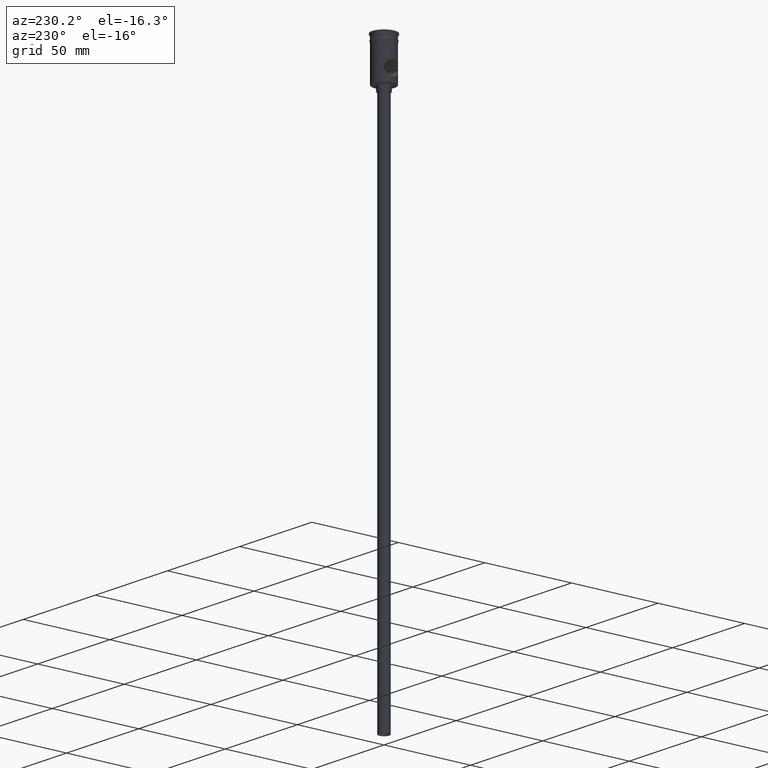
[diagram: clean part render]
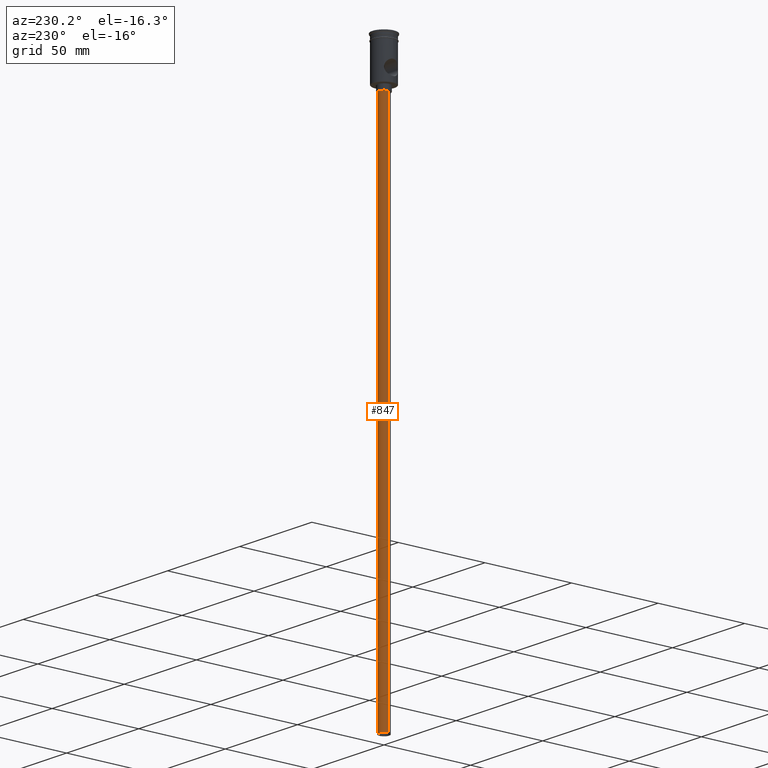
[diagram: same view with one face highlighted and labeled with its STEP entity id]
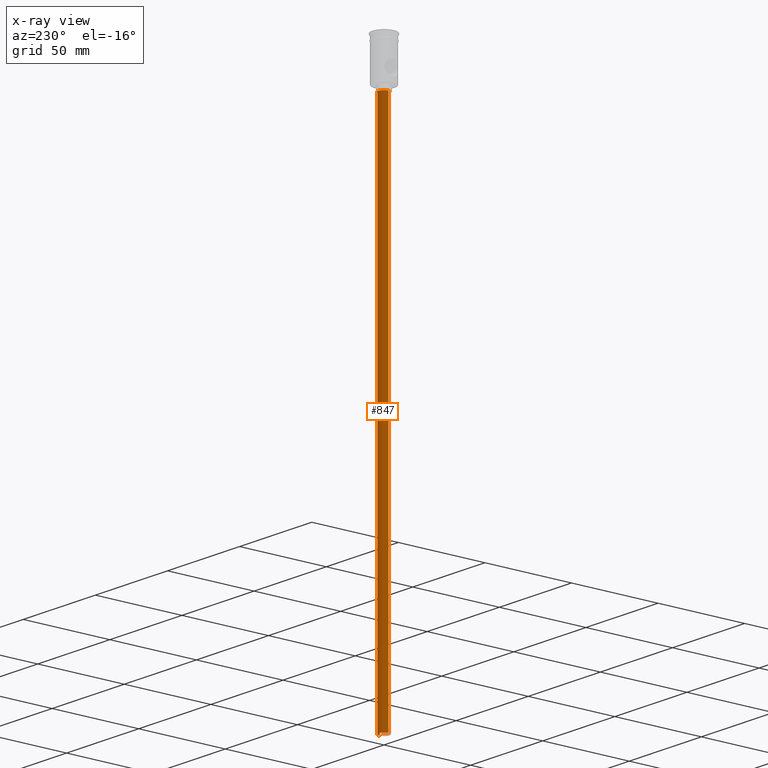
[diagram: x-ray of the same camera — body ghosted, the highlighted face saturated]
A machine part, auxiliary view. The second image highlights one B-rep face of the part: STEP entity #847.
The next image is the same camera in x-ray: the body ghosted, the highlighted face saturated — about 0% of this face is hidden behind the body in this view.
In plain terms, the highlighted cylindrical surface (edge-blend (fillet) strip) has radius 3 mm, axis along (-0, -0, 1).
Its self-contained STEP definition (entity closure, byte-faithful):
#13 = DIRECTION ( 'NONE',  ( -0.000000000000000000, -0.000000000000000000, 1.000000000000000000 ) ) ;
#28 = DIRECTION ( 'NONE',  ( -1.000000000000000000, 0.000000000000000000, 0.000000000000000000 ) ) ;
#121 = CARTESIAN_POINT ( 'NONE',  ( 0.000000000000000000, 0.000000000000000000, -324.0000000000000000 ) ) ;
#123 = CYLINDRICAL_SURFACE ( 'NONE', #629, 3.000000000000000444 ) ;
#161 = DIRECTION ( 'NONE',  ( 0.000000000000000000, 0.000000000000000000, -1.000000000000000000 ) ) ;
#191 = VERTEX_POINT ( 'NONE', #264 ) ;
#216 = VERTEX_POINT ( 'NONE', #262 ) ;
#240 = DIRECTION ( 'NONE',  ( 1.000000000000000000, 0.000000000000000000, 0.000000000000000000 ) ) ;
#262 = CARTESIAN_POINT ( 'NONE',  ( -3.000000000000000444, 3.673940397442060361E-16, -324.0000000000000000 ) ) ;
#264 = CARTESIAN_POINT ( 'NONE',  ( -3.000000000000000444, 3.673940397442060361E-16, -27.00000000000000000 ) ) ;
#297 = ORIENTED_EDGE ( 'NONE', *, *, #1304, .F. ) ;
#356 = CARTESIAN_POINT ( 'NONE',  ( 0.000000000000000000, 0.000000000000000000, -27.00000000000000000 ) ) ;
#371 = CIRCLE ( 'NONE', #1092, 3.000000000000000444 ) ;
#376 = ORIENTED_EDGE ( 'NONE', *, *, #1028, .T. ) ;
#384 = DIRECTION ( 'NONE',  ( -0.000000000000000000, -0.000000000000000000, 1.000000000000000000 ) ) ;
#411 = EDGE_CURVE ( 'NONE', #191, #478, #654, .T. ) ;
#425 = VERTEX_POINT ( 'NONE', #1105 ) ;
#478 = VERTEX_POINT ( 'NONE', #766 ) ;
#629 = AXIS2_PLACEMENT_3D ( 'NONE', #826, #13, #240 ) ;
#654 = CIRCLE ( 'NONE', #1427, 3.000000000000000444 ) ;
#670 = ORIENTED_EDGE ( 'NONE', *, *, #1101, .F. ) ;
#686 = DIRECTION ( 'NONE',  ( 0.000000000000000000, 0.000000000000000000, -1.000000000000000000 ) ) ;
#766 = CARTESIAN_POINT ( 'NONE',  ( 3.000000000000000444, 0.000000000000000000, -27.00000000000000000 ) ) ;
#826 = CARTESIAN_POINT ( 'NONE',  ( 0.000000000000000000, 0.000000000000000000, -324.0000000000000000 ) ) ;
#847 = ADVANCED_FACE ( 'NONE', ( #1169 ), #123, .T. ) ;
#856 = DIRECTION ( 'NONE',  ( -0.000000000000000000, -0.000000000000000000, 1.000000000000000000 ) ) ;
#927 = VECTOR ( 'NONE', #384, 1000.000000000000000 ) ;
#1028 = EDGE_CURVE ( 'NONE', #216, #191, #1194, .T. ) ;
#1068 = EDGE_LOOP ( 'NONE', ( #297, #376, #1453, #670 ) ) ;
#1089 = LINE ( 'NONE', #1416, #927 ) ;
#1092 = AXIS2_PLACEMENT_3D ( 'NONE', #121, #686, #1139 ) ;
#1101 = EDGE_CURVE ( 'NONE', #425, #478, #1089, .T. ) ;
#1105 = CARTESIAN_POINT ( 'NONE',  ( 3.000000000000000444, 0.000000000000000000, -324.0000000000000000 ) ) ;
#1139 = DIRECTION ( 'NONE',  ( -1.000000000000000000, 0.000000000000000000, 0.000000000000000000 ) ) ;
#1169 = FACE_OUTER_BOUND ( 'NONE', #1068, .T. ) ;
#1194 = LINE ( 'NONE', #1307, #1408 ) ;
#1304 = EDGE_CURVE ( 'NONE', #216, #425, #371, .T. ) ;
#1307 = CARTESIAN_POINT ( 'NONE',  ( -3.000000000000000444, 3.673940397442060361E-16, -324.0000000000000000 ) ) ;
#1408 = VECTOR ( 'NONE', #856, 1000.000000000000000 ) ;
#1416 = CARTESIAN_POINT ( 'NONE',  ( 3.000000000000000444, 0.000000000000000000, -324.0000000000000000 ) ) ;
#1427 = AXIS2_PLACEMENT_3D ( 'NONE', #356, #161, #28 ) ;
#1453 = ORIENTED_EDGE ( 'NONE', *, *, #411, .T. ) ;